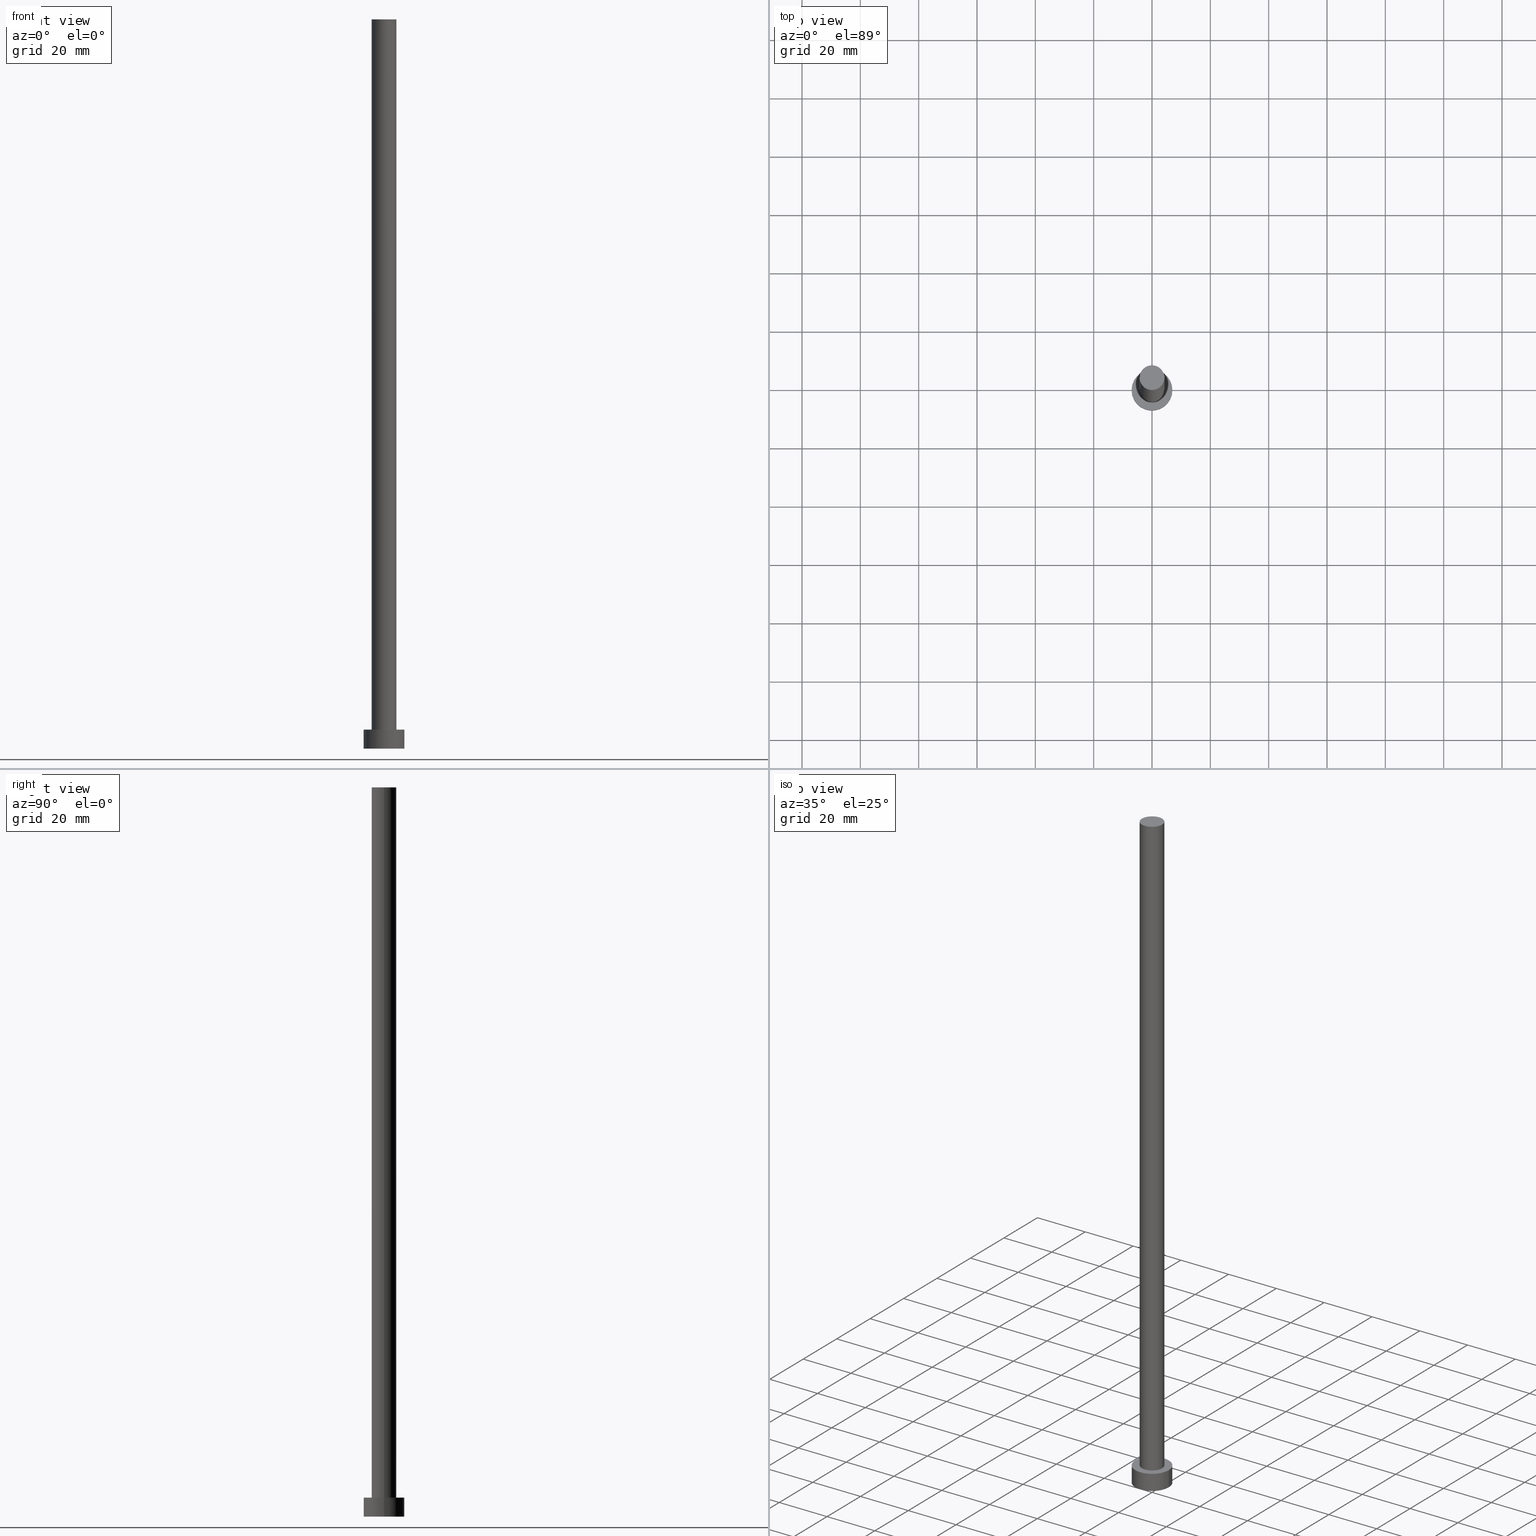
[diagram: canonical four-view strip — front | top / right | iso, engineering-drawing reading convention]
A machine part, canonical four-view strip (front | top / right | iso — engineering-drawing reading convention). The complete STEP part file that produces these views, byte-faithful:
ISO-10303-21;
HEADER;
FILE_DESCRIPTION (( 'STEP AP203' ),
    '1' );
FILE_NAME ('168e.STEP',
    '2023-02-13T13:48:13',
    ( '' ),
    ( '' ),
    'SwSTEP 2.0',
    'SolidWorks 2019',
    '' );
FILE_SCHEMA (( 'CONFIG_CONTROL_DESIGN' ));
ENDSEC;

DATA;
#1 = CARTESIAN_POINT ( 'NONE',  ( 0.000000000000000000, 0.000000000000000000, 250.0000000000000000 ) ) ;
#2 = DIRECTION ( 'NONE',  ( -1.000000000000000000, 0.000000000000000000, 0.000000000000000000 ) ) ;
#3 = SHAPE_DEFINITION_REPRESENTATION ( #17, #193 ) ;
#4 = DIRECTION ( 'NONE',  ( -1.000000000000000000, 0.000000000000000000, 0.000000000000000000 ) ) ;
#5 = PRODUCT ( '168e', '168e', '', ( #100 ) ) ;
#6 = APPROVAL ( #141, 'NEUR�EN�' ) ;
#7 = CALENDAR_DATE ( 2023, 13, 2 ) ;
#8 = DATE_TIME_ROLE ( 'creation_date' ) ;
#9 =( LENGTH_UNIT ( ) NAMED_UNIT ( * ) SI_UNIT ( .MILLI., .METRE. ) );
#10 = CIRCLE ( 'NONE', #191, 4.250000000000000000 ) ;
#11 = UNCERTAINTY_MEASURE_WITH_UNIT (LENGTH_MEASURE( 1.000000000000000082E-05 ), #9, 'distance_accuracy_value', 'NONE');
#12 = VECTOR ( 'NONE', #96, 1000.000000000000000 ) ;
#13 = DIRECTION ( 'NONE',  ( -1.000000000000000000, 0.000000000000000000, 0.000000000000000000 ) ) ;
#14 = CARTESIAN_POINT ( 'NONE',  ( -4.250000000000000000, 0.000000000000000000, 250.0000000000000000 ) ) ;
#15 = ORIENTED_EDGE ( 'NONE', *, *, #25, .F. ) ;
#16 = ORIENTED_EDGE ( 'NONE', *, *, #252, .F. ) ;
#17 = PRODUCT_DEFINITION_SHAPE ( 'NONE', 'NONE',  #162 ) ;
#18 = FACE_OUTER_BOUND ( 'NONE', #211, .T. ) ;
#19 = DIRECTION ( 'NONE',  ( -1.000000000000000000, 0.000000000000000000, 0.000000000000000000 ) ) ;
#20 = CARTESIAN_POINT ( 'NONE',  ( 4.250000000000000000, 5.204748896376250699E-16, 250.0000000000000000 ) ) ;
#21 = APPROVAL ( #65, 'NEUR�EN�' ) ;
#22 = LOCAL_TIME ( 14, 48, 13.00000000000000000, #206 ) ;
#23 = CARTESIAN_POINT ( 'NONE',  ( 0.000000000000000000, 0.000000000000000000, 6.500000000000000000 ) ) ;
#24 = CARTESIAN_POINT ( 'NONE',  ( 0.000000000000000000, 0.000000000000000000, 6.500000000000000000 ) ) ;
#25 = EDGE_CURVE ( 'NONE', #212, #250, #249, .T. ) ;
#26 = CALENDAR_DATE ( 2023, 13, 2 ) ;
#27 = CC_DESIGN_APPROVAL ( #21, ( #162 ) ) ;
#28 = PERSON_AND_ORGANIZATION_ROLE ( 'creator' ) ;
#29 = CC_DESIGN_APPROVAL ( #188, ( #151 ) ) ;
#30 = DATE_AND_TIME ( #144, #22 ) ;
#31 = LINE ( 'NONE', #49, #166 ) ;
#32 = ORIENTED_EDGE ( 'NONE', *, *, #94, .T. ) ;
#33 = EDGE_LOOP ( 'NONE', ( #147, #170, #88, #226 ) ) ;
#34 = EDGE_CURVE ( 'NONE', #229, #190, #93, .T. ) ;
#35 = VERTEX_POINT ( 'NONE', #208 ) ;
#36 = DIRECTION ( 'NONE',  ( -0.000000000000000000, -0.000000000000000000, -1.000000000000000000 ) ) ;
#37 = CIRCLE ( 'NONE', #97, 4.250000000000000000 ) ;
#38 = CIRCLE ( 'NONE', #68, 7.000000000000000000 ) ;
#39 = CARTESIAN_POINT ( 'NONE',  ( 7.000000000000000000, 8.572527594031471218E-16, 6.500000000000000000 ) ) ;
#40 = ADVANCED_FACE ( 'NONE', ( #18 ), #92, .T. ) ;
#41 = DIRECTION ( 'NONE',  ( 0.000000000000000000, 0.000000000000000000, 1.000000000000000000 ) ) ;
#42 = PLANE ( 'NONE',  #177 ) ;
#43 = CARTESIAN_POINT ( 'NONE',  ( 0.000000000000000000, 0.000000000000000000, 250.0000000000000000 ) ) ;
#44 = APPROVAL_DATE_TIME ( #221, #6 ) ;
#45 = COORDINATED_UNIVERSAL_TIME_OFFSET ( 1, 0, .AHEAD. ) ;
#46 = PERSON_AND_ORGANIZATION_ROLE ( 'design_owner' ) ;
#47 = AXIS2_PLACEMENT_3D ( 'NONE', #183, #125, #165 ) ;
#48 = DATE_AND_TIME ( #7, #127 ) ;
#49 = CARTESIAN_POINT ( 'NONE',  ( -7.000000000000000000, 0.000000000000000000, 6.500000000000000000 ) ) ;
#50 = ORIENTED_EDGE ( 'NONE', *, *, #168, .T. ) ;
#51 = LOCAL_TIME ( 14, 48, 13.00000000000000000, #242 ) ;
#52 = CARTESIAN_POINT ( 'NONE',  ( 4.250000000000000000, 5.204748896376250699E-16, 250.0000000000000000 ) ) ;
#53 = CC_DESIGN_PERSON_AND_ORGANIZATION_ASSIGNMENT ( #82, #76, ( #151 ) ) ;
#54 = EDGE_LOOP ( 'NONE', ( #67, #32 ) ) ;
#55 = ORIENTED_EDGE ( 'NONE', *, *, #149, .F. ) ;
#56 = ORGANIZATION ( 'NEUR�EN�', 'NEUR�EN�', '' ) ;
#57 = CARTESIAN_POINT ( 'NONE',  ( 0.000000000000000000, 0.000000000000000000, 6.500000000000000000 ) ) ;
#58 = DIRECTION ( 'NONE',  ( 1.000000000000000000, 0.000000000000000000, 0.000000000000000000 ) ) ;
#59 = DIRECTION ( 'NONE',  ( 1.000000000000000000, 0.000000000000000000, -0.000000000000000000 ) ) ;
#60 = CARTESIAN_POINT ( 'NONE',  ( 7.000000000000000000, 8.572527594031471218E-16, 6.500000000000000000 ) ) ;
#61 = CALENDAR_DATE ( 2023, 13, 2 ) ;
#62 = APPROVAL_DATE_TIME ( #225, #21 ) ;
#63 = DIRECTION ( 'NONE',  ( 0.000000000000000000, 0.000000000000000000, 1.000000000000000000 ) ) ;
#64 = CALENDAR_DATE ( 2023, 13, 2 ) ;
#65 = APPROVAL_STATUS ( 'not_yet_approved' ) ;
#66 = CARTESIAN_POINT ( 'NONE',  ( 0.000000000000000000, 0.000000000000000000, 6.500000000000000000 ) ) ;
#67 = ORIENTED_EDGE ( 'NONE', *, *, #34, .T. ) ;
#68 = AXIS2_PLACEMENT_3D ( 'NONE', #23, #161, #255 ) ;
#69 = EDGE_LOOP ( 'NONE', ( #186, #171, #150, #15 ) ) ;
#70 = ORIENTED_EDGE ( 'NONE', *, *, #194, .T. ) ;
#71 = CC_DESIGN_PERSON_AND_ORGANIZATION_ASSIGNMENT ( #247, #28, ( #162 ) ) ;
#72 = PLANE ( 'NONE',  #135 ) ;
#73 = EDGE_CURVE ( 'NONE', #130, #35, #187, .T. ) ;
#74 = CIRCLE ( 'NONE', #106, 7.000000000000000000 ) ;
#75 = FACE_OUTER_BOUND ( 'NONE', #172, .T. ) ;
#76 = PERSON_AND_ORGANIZATION_ROLE ( 'design_supplier' ) ;
#77 = AXIS2_PLACEMENT_3D ( 'NONE', #238, #240, #136 ) ;
#78 = DIRECTION ( 'NONE',  ( 1.000000000000000000, 0.000000000000000000, 0.000000000000000000 ) ) ;
#79 = CARTESIAN_POINT ( 'NONE',  ( 0.000000000000000000, 0.000000000000000000, 250.0000000000000000 ) ) ;
#80 = CARTESIAN_POINT ( 'NONE',  ( -4.250000000000000000, 0.000000000000000000, 250.0000000000000000 ) ) ;
#81 = VECTOR ( 'NONE', #36, 1000.000000000000000 ) ;
#82 = PERSON_AND_ORGANIZATION ( #134, #56 ) ;
#83 = ADVANCED_FACE ( 'NONE', ( #189, #153 ), #175, .T. ) ;
#84 =( NAMED_UNIT ( * ) SI_UNIT ( $, .STERADIAN. ) SOLID_ANGLE_UNIT ( ) );
#85 = APPROVAL_PERSON_ORGANIZATION ( #167, #188, #103 ) ;
#86 = PERSON_AND_ORGANIZATION ( #134, #56 ) ;
#87 = AXIS2_PLACEMENT_3D ( 'NONE', #79, #179, #2 ) ;
#88 = ORIENTED_EDGE ( 'NONE', *, *, #25, .T. ) ;
#89 = DIRECTION ( 'NONE',  ( 0.000000000000000000, 0.000000000000000000, 1.000000000000000000 ) ) ;
#90 = ORIENTED_EDGE ( 'NONE', *, *, #176, .F. ) ;
#91 = EDGE_LOOP ( 'NONE', ( #90, #251 ) ) ;
#92 = CYLINDRICAL_SURFACE ( 'NONE', #199, 7.000000000000000000 ) ;
#93 = CIRCLE ( 'NONE', #112, 7.000000000000000000 ) ;
#94 = EDGE_CURVE ( 'NONE', #190, #229, #38, .T. ) ;
#95 = DIRECTION ( 'NONE',  ( 1.000000000000000000, 0.000000000000000000, -0.000000000000000000 ) ) ;
#96 = DIRECTION ( 'NONE',  ( -0.000000000000000000, -0.000000000000000000, -1.000000000000000000 ) ) ;
#97 = AXIS2_PLACEMENT_3D ( 'NONE', #195, #254, #78 ) ;
#98 = FACE_OUTER_BOUND ( 'NONE', #33, .T. ) ;
#99 = DIRECTION ( 'NONE',  ( 1.000000000000000000, 0.000000000000000000, 0.000000000000000000 ) ) ;
#100 = MECHANICAL_CONTEXT ( 'NONE', #210, 'mechanical' ) ;
#101 =( GEOMETRIC_REPRESENTATION_CONTEXT ( 3 ) GLOBAL_UNCERTAINTY_ASSIGNED_CONTEXT ( ( #11 ) ) GLOBAL_UNIT_ASSIGNED_CONTEXT ( ( #9, #107, #84 ) ) REPRESENTATION_CONTEXT ( 'NONE', 'WORKASPACE' ) );
#102 = PERSON_AND_ORGANIZATION ( #134, #56 ) ;
#103 = APPROVAL_ROLE ( '' ) ;
#104 = DIRECTION ( 'NONE',  ( -0.000000000000000000, -0.000000000000000000, -1.000000000000000000 ) ) ;
#105 = DIRECTION ( 'NONE',  ( -0.000000000000000000, -0.000000000000000000, -1.000000000000000000 ) ) ;
#106 = AXIS2_PLACEMENT_3D ( 'NONE', #164, #63, #241 ) ;
#107 =( NAMED_UNIT ( * ) PLANE_ANGLE_UNIT ( ) SI_UNIT ( $, .RADIAN. ) );
#108 = EDGE_LOOP ( 'NONE', ( #50, #70 ) ) ;
#109 = DIRECTION ( 'NONE',  ( -0.000000000000000000, -0.000000000000000000, -1.000000000000000000 ) ) ;
#110 = ORIENTED_EDGE ( 'NONE', *, *, #94, .F. ) ;
#111 = CC_DESIGN_SECURITY_CLASSIFICATION ( #203, ( #151 ) ) ;
#112 = AXIS2_PLACEMENT_3D ( 'NONE', #113, #89, #192 ) ;
#113 = CARTESIAN_POINT ( 'NONE',  ( 0.000000000000000000, 0.000000000000000000, 6.500000000000000000 ) ) ;
#114 = CC_DESIGN_PERSON_AND_ORGANIZATION_ASSIGNMENT ( #86, #46, ( #5 ) ) ;
#115 = ADVANCED_FACE ( 'NONE', ( #75 ), #196, .T. ) ;
#116 = DIRECTION ( 'NONE',  ( -0.000000000000000000, -0.000000000000000000, -1.000000000000000000 ) ) ;
#117 = FACE_OUTER_BOUND ( 'NONE', #108, .T. ) ;
#118 = CARTESIAN_POINT ( 'NONE',  ( 0.000000000000000000, 0.000000000000000000, 0.000000000000000000 ) ) ;
#119 = PERSON_AND_ORGANIZATION_ROLE ( 'classification_officer' ) ;
#120 = CC_DESIGN_PERSON_AND_ORGANIZATION_ASSIGNMENT ( #185, #239, ( #151 ) ) ;
#121 = CARTESIAN_POINT ( 'NONE',  ( 7.000000000000000000, 8.572527594031471218E-16, 0.000000000000000000 ) ) ;
#122 = CARTESIAN_POINT ( 'NONE',  ( -4.250000000000000000, 0.000000000000000000, 6.500000000000000000 ) ) ;
#123 = CC_DESIGN_DATE_AND_TIME_ASSIGNMENT ( #197, #180, ( #203 ) ) ;
#124 = APPROVAL_PERSON_ORGANIZATION ( #163, #21, #145 ) ;
#125 = DIRECTION ( 'NONE',  ( 0.000000000000000000, 0.000000000000000000, 1.000000000000000000 ) ) ;
#126 = VERTEX_POINT ( 'NONE', #217 ) ;
#127 = LOCAL_TIME ( 14, 48, 13.00000000000000000, #245 ) ;
#128 = AXIS2_PLACEMENT_3D ( 'NONE', #232, #160, #95 ) ;
#129 = ORIENTED_EDGE ( 'NONE', *, *, #142, .F. ) ;
#130 = VERTEX_POINT ( 'NONE', #20 ) ;
#131 = ADVANCED_FACE ( 'NONE', ( #98 ), #155, .T. ) ;
#132 = ORIENTED_EDGE ( 'NONE', *, *, #252, .T. ) ;
#133 = APPROVAL_PERSON_ORGANIZATION ( #138, #6, #202 ) ;
#134 = PERSON ( 'NEUR�EN�', 'NEUR�EN�', 'NEUR�EN�', ('NEUR�EN�'), ('NEUR�EN�'), ('NEUR�EN�') ) ;
#135 = AXIS2_PLACEMENT_3D ( 'NONE', #1, #236, #59 ) ;
#136 = DIRECTION ( 'NONE',  ( 1.000000000000000000, 0.000000000000000000, 0.000000000000000000 ) ) ;
#137 = DIRECTION ( 'NONE',  ( 1.000000000000000000, 0.000000000000000000, 0.000000000000000000 ) ) ;
#138 = PERSON_AND_ORGANIZATION ( #134, #56 ) ;
#139 = CARTESIAN_POINT ( 'NONE',  ( -7.000000000000000000, 0.000000000000000000, 6.500000000000000000 ) ) ;
#140 = LINE ( 'NONE', #60, #12 ) ;
#141 = APPROVAL_STATUS ( 'not_yet_approved' ) ;
#142 = EDGE_CURVE ( 'NONE', #190, #174, #140, .T. ) ;
#143 = DIRECTION ( 'NONE',  ( 1.000000000000000000, 0.000000000000000000, -0.000000000000000000 ) ) ;
#144 = CALENDAR_DATE ( 2023, 13, 2 ) ;
#145 = APPROVAL_ROLE ( '' ) ;
#146 = ORIENTED_EDGE ( 'NONE', *, *, #34, .F. ) ;
#147 = ORIENTED_EDGE ( 'NONE', *, *, #73, .F. ) ;
#148 = ORIENTED_EDGE ( 'NONE', *, *, #176, .T. ) ;
#149 = EDGE_CURVE ( 'NONE', #250, #35, #152, .T. ) ;
#150 = ORIENTED_EDGE ( 'NONE', *, *, #205, .T. ) ;
#151 = PRODUCT_DEFINITION_FORMATION_WITH_SPECIFIED_SOURCE ( 'LIBOVOLN�', '', #5, .NOT_KNOWN. ) ;
#152 = CIRCLE ( 'NONE', #77, 4.250000000000000000 ) ;
#153 = FACE_OUTER_BOUND ( 'NONE', #54, .T. ) ;
#154 = CIRCLE ( 'NONE', #246, 4.250000000000000000 ) ;
#155 = CYLINDRICAL_SURFACE ( 'NONE', #87, 4.250000000000000000 ) ;
#156 = ADVANCED_FACE ( 'NONE', ( #220 ), #235, .T. ) ;
#157 = CIRCLE ( 'NONE', #233, 7.000000000000000000 ) ;
#158 = DIRECTION ( 'NONE',  ( 0.000000000000000000, 0.000000000000000000, 1.000000000000000000 ) ) ;
#159 = MANIFOLD_SOLID_BREP ( 'P�idat vysunut�m3', #253 ) ;
#160 = DIRECTION ( 'NONE',  ( 0.000000000000000000, 0.000000000000000000, 1.000000000000000000 ) ) ;
#161 = DIRECTION ( 'NONE',  ( 0.000000000000000000, 0.000000000000000000, 1.000000000000000000 ) ) ;
#162 = PRODUCT_DEFINITION ( 'NEZN�M�', '', #151, #169 ) ;
#163 = PERSON_AND_ORGANIZATION ( #134, #56 ) ;
#164 = CARTESIAN_POINT ( 'NONE',  ( 0.000000000000000000, 0.000000000000000000, 0.000000000000000000 ) ) ;
#165 = DIRECTION ( 'NONE',  ( 1.000000000000000000, 0.000000000000000000, 0.000000000000000000 ) ) ;
#166 = VECTOR ( 'NONE', #104, 1000.000000000000000 ) ;
#167 = PERSON_AND_ORGANIZATION ( #134, #56 ) ;
#168 = EDGE_CURVE ( 'NONE', #212, #130, #37, .T. ) ;
#169 = DESIGN_CONTEXT ( 'detailed design', #173, 'design' ) ;
#170 = ORIENTED_EDGE ( 'NONE', *, *, #168, .F. ) ;
#171 = ORIENTED_EDGE ( 'NONE', *, *, #73, .T. ) ;
#172 = EDGE_LOOP ( 'NONE', ( #129, #146, #132, #148 ) ) ;
#173 = APPLICATION_CONTEXT ( 'configuration controlled 3d designs of mechanical parts and assemblies' ) ;
#174 = VERTEX_POINT ( 'NONE', #121 ) ;
#175 = PLANE ( 'NONE',  #128 ) ;
#176 = EDGE_CURVE ( 'NONE', #126, #174, #157, .T. ) ;
#177 = AXIS2_PLACEMENT_3D ( 'NONE', #118, #200, #143 ) ;
#178 = CARTESIAN_POINT ( 'NONE',  ( 0.000000000000000000, 0.000000000000000000, 250.0000000000000000 ) ) ;
#179 = DIRECTION ( 'NONE',  ( -0.000000000000000000, -0.000000000000000000, -1.000000000000000000 ) ) ;
#180 = DATE_TIME_ROLE ( 'classification_date' ) ;
#181 = DIRECTION ( 'NONE',  ( 0.000000000000000000, 0.000000000000000000, 1.000000000000000000 ) ) ;
#182 = COORDINATED_UNIVERSAL_TIME_OFFSET ( 1, 0, .AHEAD. ) ;
#183 = CARTESIAN_POINT ( 'NONE',  ( 0.000000000000000000, 0.000000000000000000, 0.000000000000000000 ) ) ;
#184 = CC_DESIGN_PERSON_AND_ORGANIZATION_ASSIGNMENT ( #102, #119, ( #203 ) ) ;
#185 = PERSON_AND_ORGANIZATION ( #134, #56 ) ;
#186 = ORIENTED_EDGE ( 'NONE', *, *, #194, .F. ) ;
#187 = LINE ( 'NONE', #52, #228 ) ;
#188 = APPROVAL ( #222, 'NEUR�EN�' ) ;
#189 = FACE_BOUND ( 'NONE', #230, .T. ) ;
#190 = VERTEX_POINT ( 'NONE', #39 ) ;
#191 = AXIS2_PLACEMENT_3D ( 'NONE', #24, #181, #58 ) ;
#192 = DIRECTION ( 'NONE',  ( 1.000000000000000000, 0.000000000000000000, 0.000000000000000000 ) ) ;
#193 = ADVANCED_BREP_SHAPE_REPRESENTATION ( '168e', ( #159, #47 ), #101 ) ;
#194 = EDGE_CURVE ( 'NONE', #130, #212, #154, .T. ) ;
#195 = CARTESIAN_POINT ( 'NONE',  ( 0.000000000000000000, 0.000000000000000000, 250.0000000000000000 ) ) ;
#196 = CYLINDRICAL_SURFACE ( 'NONE', #234, 7.000000000000000000 ) ;
#197 = DATE_AND_TIME ( #61, #198 ) ;
#198 = LOCAL_TIME ( 14, 48, 13.00000000000000000, #45 ) ;
#199 = AXIS2_PLACEMENT_3D ( 'NONE', #66, #105, #13 ) ;
#200 = DIRECTION ( 'NONE',  ( 0.000000000000000000, 0.000000000000000000, 1.000000000000000000 ) ) ;
#201 = CARTESIAN_POINT ( 'NONE',  ( 0.000000000000000000, 0.000000000000000000, 0.000000000000000000 ) ) ;
#202 = APPROVAL_ROLE ( '' ) ;
#203 = SECURITY_CLASSIFICATION ( '', '', #219 ) ;
#204 = APPROVAL_DATE_TIME ( #48, #188 ) ;
#205 = EDGE_CURVE ( 'NONE', #35, #250, #10, .T. ) ;
#206 = COORDINATED_UNIVERSAL_TIME_OFFSET ( 1, 0, .AHEAD. ) ;
#207 = APPLICATION_PROTOCOL_DEFINITION ( 'international standard', 'config_control_design', 1994, #210 ) ;
#208 = CARTESIAN_POINT ( 'NONE',  ( 4.250000000000000000, 5.204748896376250699E-16, 6.500000000000000000 ) ) ;
#209 = ORIENTED_EDGE ( 'NONE', *, *, #205, .F. ) ;
#210 = APPLICATION_CONTEXT ( 'configuration controlled 3d designs of mechanical parts and assemblies' ) ;
#211 = EDGE_LOOP ( 'NONE', ( #110, #227, #248, #16 ) ) ;
#212 = VERTEX_POINT ( 'NONE', #80 ) ;
#213 = AXIS2_PLACEMENT_3D ( 'NONE', #43, #216, #4 ) ;
#214 = LOCAL_TIME ( 14, 48, 13.00000000000000000, #182 ) ;
#215 = PRODUCT_RELATED_PRODUCT_CATEGORY ( 'detail', '', ( #5 ) ) ;
#216 = DIRECTION ( 'NONE',  ( -0.000000000000000000, -0.000000000000000000, -1.000000000000000000 ) ) ;
#217 = CARTESIAN_POINT ( 'NONE',  ( -7.000000000000000000, 0.000000000000000000, 0.000000000000000000 ) ) ;
#218 = FACE_OUTER_BOUND ( 'NONE', #91, .T. ) ;
#219 = SECURITY_CLASSIFICATION_LEVEL ( 'unclassified' ) ;
#220 = FACE_OUTER_BOUND ( 'NONE', #69, .T. ) ;
#221 = DATE_AND_TIME ( #26, #51 ) ;
#222 = APPROVAL_STATUS ( 'not_yet_approved' ) ;
#223 = ADVANCED_FACE ( 'NONE', ( #117 ), #72, .T. ) ;
#224 = CC_DESIGN_APPROVAL ( #6, ( #203 ) ) ;
#225 = DATE_AND_TIME ( #64, #214 ) ;
#226 = ORIENTED_EDGE ( 'NONE', *, *, #149, .T. ) ;
#227 = ORIENTED_EDGE ( 'NONE', *, *, #142, .T. ) ;
#228 = VECTOR ( 'NONE', #109, 1000.000000000000000 ) ;
#229 = VERTEX_POINT ( 'NONE', #139 ) ;
#230 = EDGE_LOOP ( 'NONE', ( #55, #209 ) ) ;
#231 = CC_DESIGN_DATE_AND_TIME_ASSIGNMENT ( #30, #8, ( #162 ) ) ;
#232 = CARTESIAN_POINT ( 'NONE',  ( 0.000000000000000000, 0.000000000000000000, 6.500000000000000000 ) ) ;
#233 = AXIS2_PLACEMENT_3D ( 'NONE', #201, #158, #99 ) ;
#234 = AXIS2_PLACEMENT_3D ( 'NONE', #57, #116, #19 ) ;
#235 = CYLINDRICAL_SURFACE ( 'NONE', #213, 4.250000000000000000 ) ;
#236 = DIRECTION ( 'NONE',  ( 0.000000000000000000, 0.000000000000000000, 1.000000000000000000 ) ) ;
#237 = ADVANCED_FACE ( 'NONE', ( #218 ), #42, .F. ) ;
#238 = CARTESIAN_POINT ( 'NONE',  ( 0.000000000000000000, 0.000000000000000000, 6.500000000000000000 ) ) ;
#239 = PERSON_AND_ORGANIZATION_ROLE ( 'creator' ) ;
#240 = DIRECTION ( 'NONE',  ( 0.000000000000000000, 0.000000000000000000, 1.000000000000000000 ) ) ;
#241 = DIRECTION ( 'NONE',  ( 1.000000000000000000, 0.000000000000000000, 0.000000000000000000 ) ) ;
#242 = COORDINATED_UNIVERSAL_TIME_OFFSET ( 1, 0, .AHEAD. ) ;
#243 = EDGE_CURVE ( 'NONE', #174, #126, #74, .T. ) ;
#244 = APPLICATION_PROTOCOL_DEFINITION ( 'international standard', 'config_control_design', 1994, #173 ) ;
#245 = COORDINATED_UNIVERSAL_TIME_OFFSET ( 1, 0, .AHEAD. ) ;
#246 = AXIS2_PLACEMENT_3D ( 'NONE', #178, #41, #137 ) ;
#247 = PERSON_AND_ORGANIZATION ( #134, #56 ) ;
#248 = ORIENTED_EDGE ( 'NONE', *, *, #243, .T. ) ;
#249 = LINE ( 'NONE', #14, #81 ) ;
#250 = VERTEX_POINT ( 'NONE', #122 ) ;
#251 = ORIENTED_EDGE ( 'NONE', *, *, #243, .F. ) ;
#252 = EDGE_CURVE ( 'NONE', #229, #126, #31, .T. ) ;
#253 = CLOSED_SHELL ( 'NONE', ( #156, #40, #115, #83, #237, #131, #223 ) ) ;
#254 = DIRECTION ( 'NONE',  ( 0.000000000000000000, 0.000000000000000000, 1.000000000000000000 ) ) ;
#255 = DIRECTION ( 'NONE',  ( 1.000000000000000000, 0.000000000000000000, 0.000000000000000000 ) ) ;
ENDSEC;
END-ISO-10303-21;
